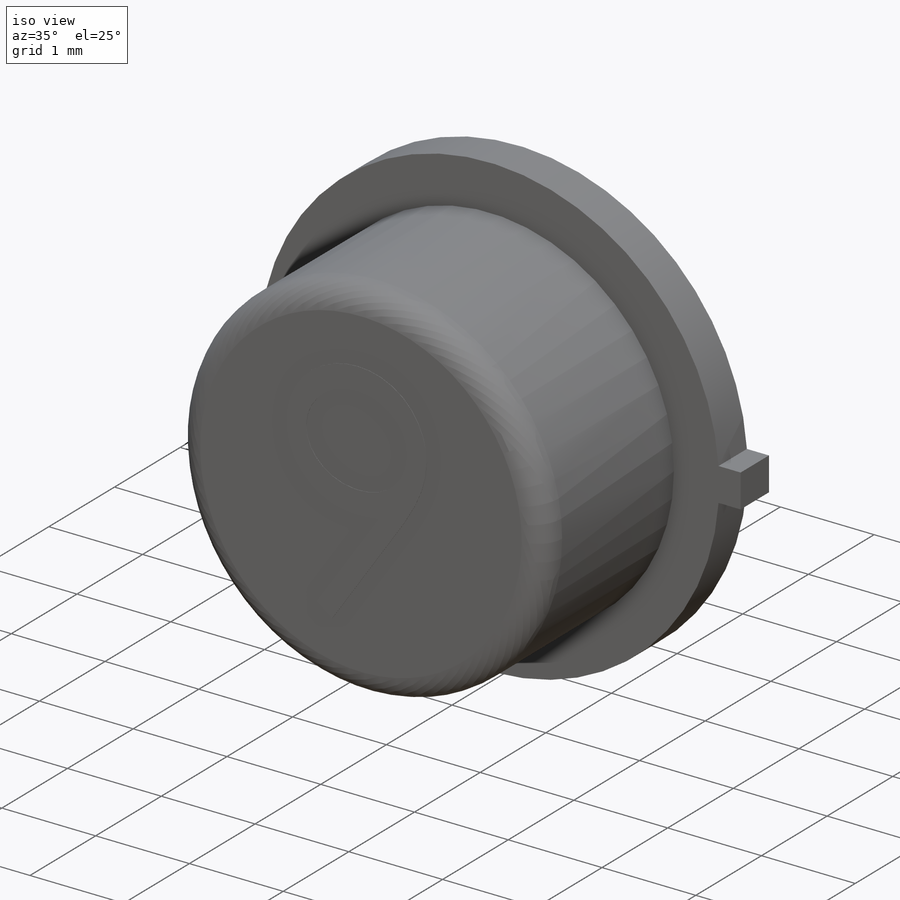
[diagram: iso view]
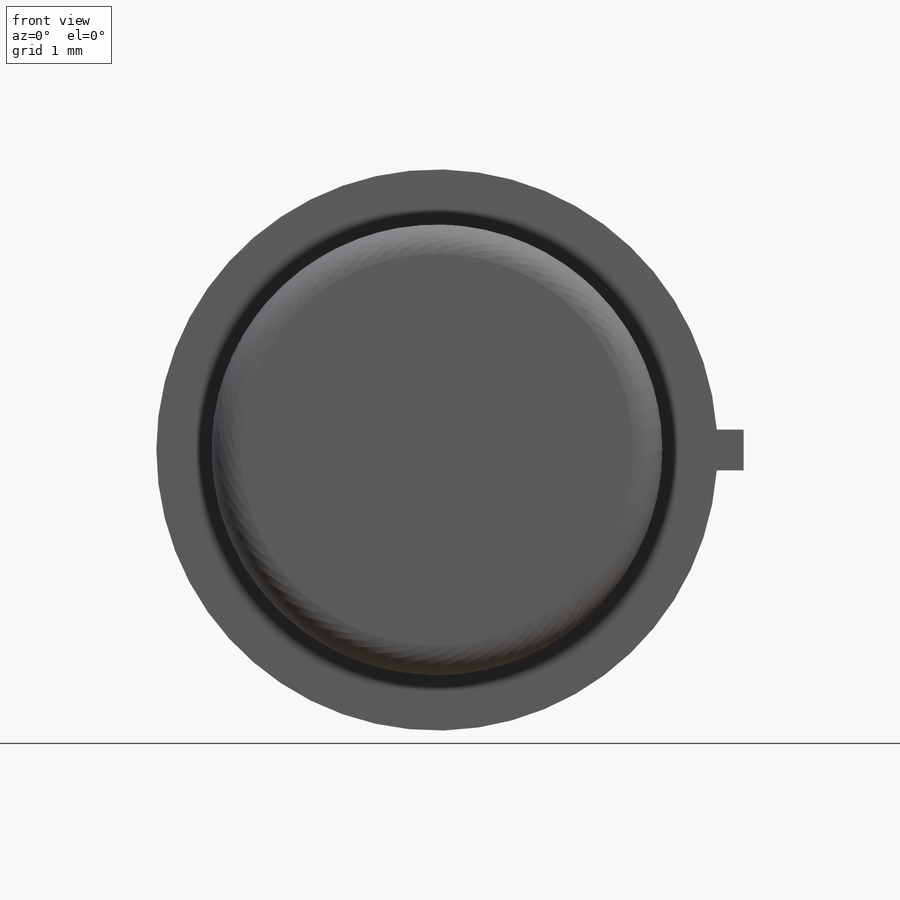
[diagram: front view]
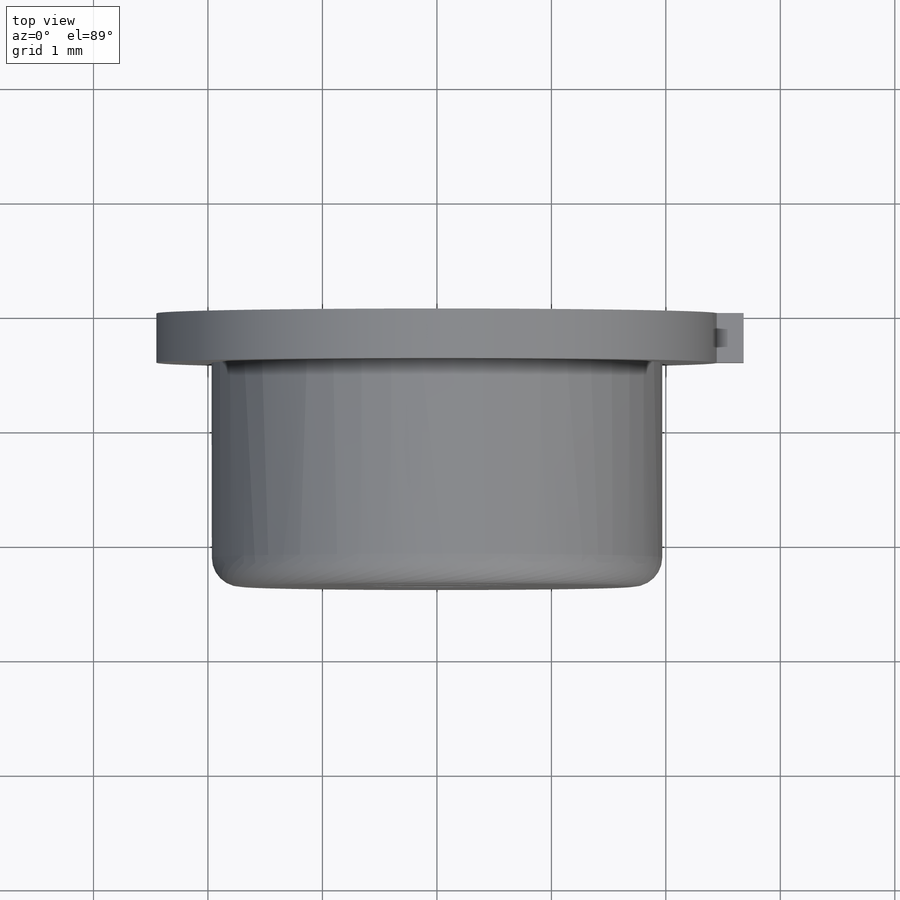
[diagram: top view]
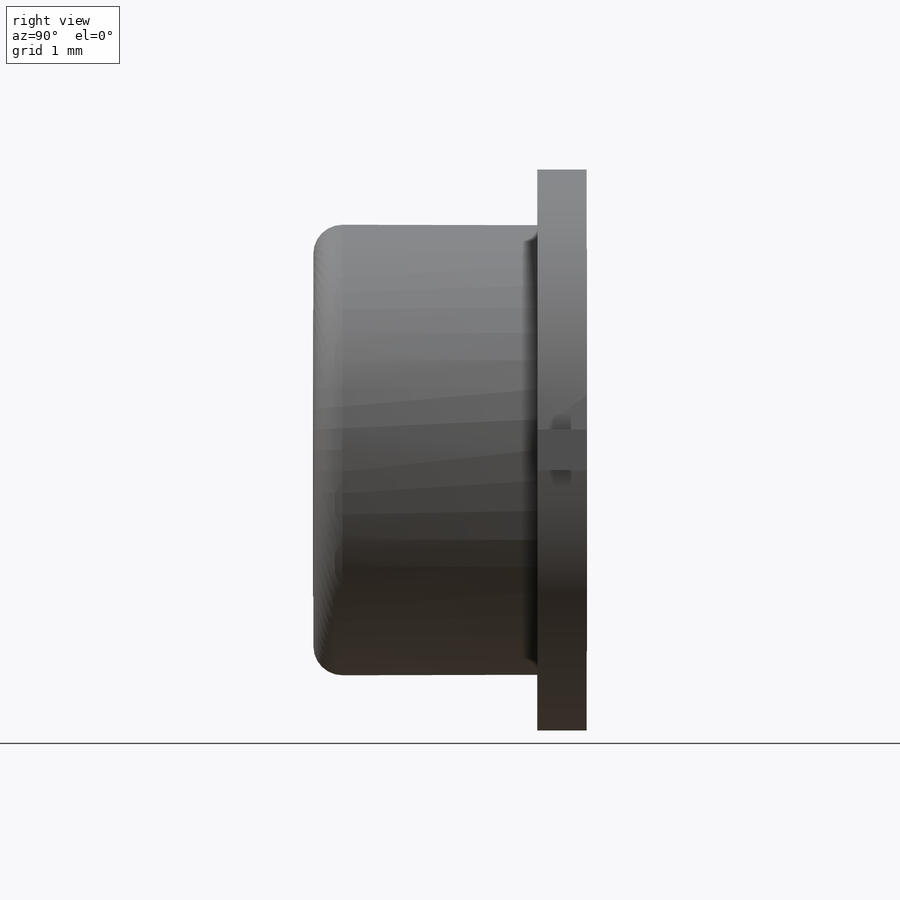
[diagram: right view]
SOLIDWORKS PART (.sldprt)
format: sldprt  version: not decoded by parser v0  size: 214,528 bytes
history: native  units: mm
features: sketch x4, extrude x4, material x1, fillet x1 (+16 scaffold rows collapsed)
feature tree (26):
  scaffold x16  (default folders/planes/origin — collapsed)
  material  "Material <not specified>"
  sketch  "Sketch1"  dims[D1=4.9022mm D2=0.3556mm D3=0.2286mm]
  extrude  "Boss-Extrude1"  Depth=0.4318mm
  sketch  "Sketch2"  dims[D1=3.937mm]
  extrude  "Boss-Extrude2"  Depth=1.9558mm
  sketch  "Sketch3"
  extrude  "Boss-Extrude3"  Depth=0.00254mm
  fillet  "Fillet1"  Radius=0.254mm
  sketch  "Sketch4"  dims[D1=2.413mm]
  extrude  "Boss-Extrude6"  Depth=0.00254mm
decode coverage: 8 of 9 modeling features carry decoded parameters
note: suppression state not decoded; provenance and decode notes live in map.json
